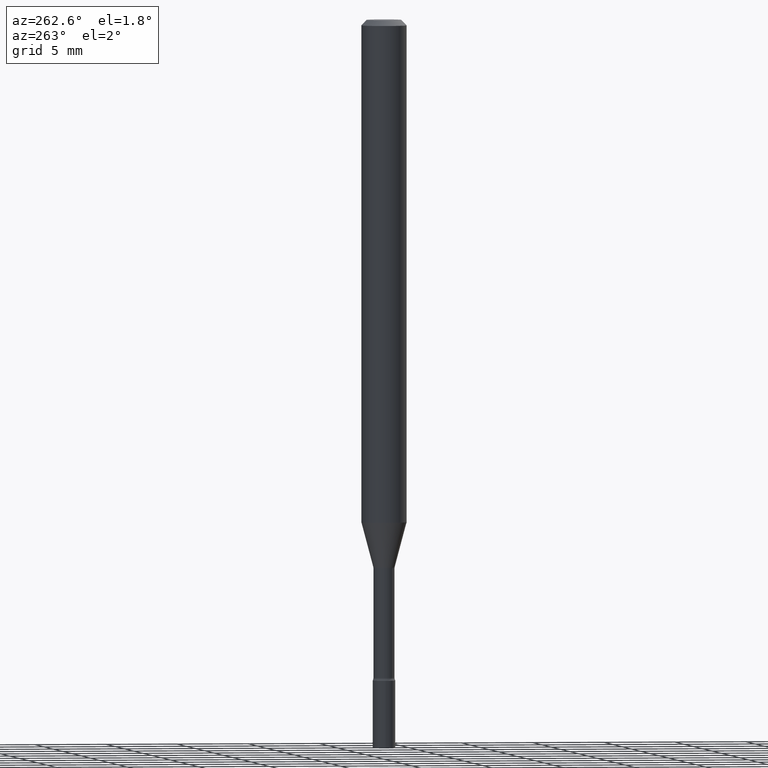
[diagram: clean part render]
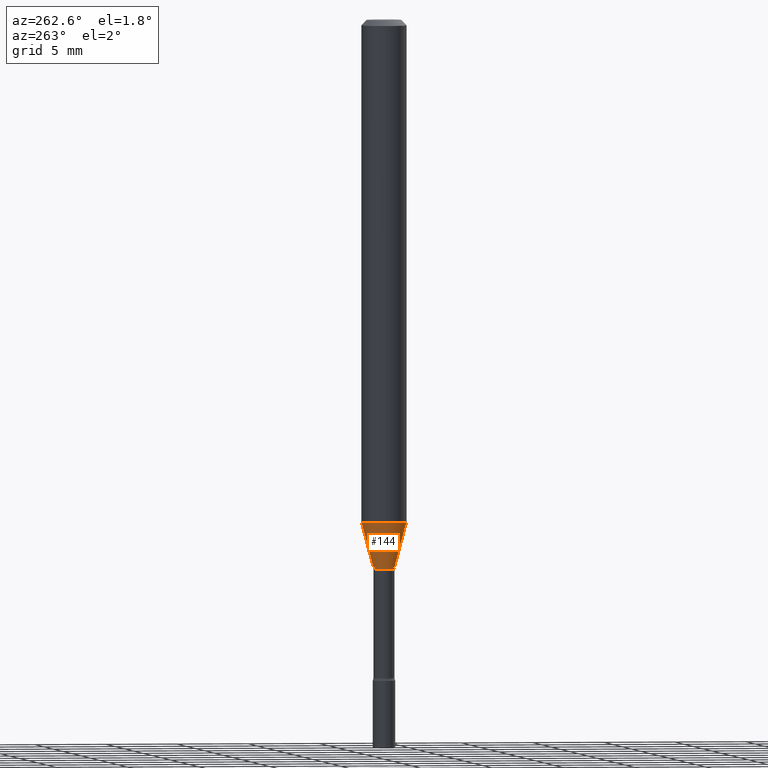
[diagram: same view with one face highlighted and labeled with its STEP entity id]
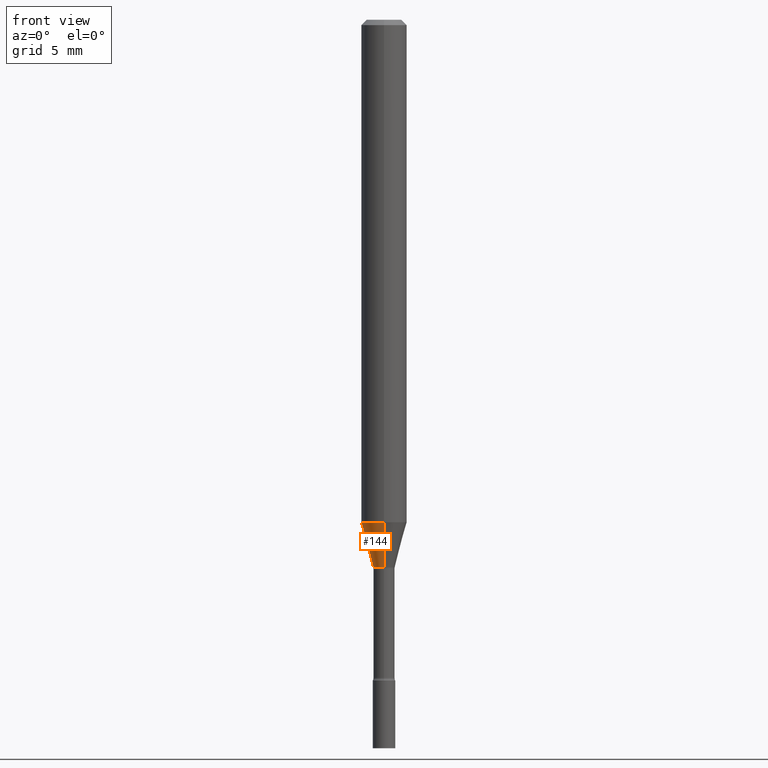
[diagram: same view with one face highlighted and labeled with its STEP entity id]
A machine part, auxiliary view. The second image highlights one B-rep face of the part: STEP entity #144.
A second angle (front view) of the same face is appended — the face is thin or edge-on in the first view.
In plain terms, the highlighted conical surface has half-angle 15 deg.
Its self-contained STEP definition (entity closure, byte-faithful):
#14 = DIRECTION ( 'NONE',  ( -6.982962677686265922E-15, -1.000000000000000000, 4.370956789862821150E-15 ) ) ;
#18 = EDGE_CURVE ( 'NONE', #307, #257, #353, .T. ) ;
#20 = VERTEX_POINT ( 'NONE', #185 ) ;
#33 = ORIENTED_EDGE ( 'NONE', *, *, #401, .T. ) ;
#40 = DIRECTION ( 'NONE',  ( -6.982962677686265922E-15, -1.000000000000000000, 0.000000000000000000 ) ) ;
#48 = CARTESIAN_POINT ( 'NONE',  ( 3.274220454076509529E-16, 0.02966111260565873833, -1.502092501787273271 ) ) ;
#70 = EDGE_LOOP ( 'NONE', ( #398, #33, #236, #349 ) ) ;
#73 = FACE_OUTER_BOUND ( 'NONE', #70, .T. ) ;
#77 = CIRCLE ( 'NONE', #312, 0.06250000000000000000 ) ;
#121 = CARTESIAN_POINT ( 'NONE',  ( 3.673350361826927807E-29, -5.244484970766083599E-15, -1.502092501787273271 ) ) ;
#144 = ADVANCED_FACE ( 'NONE', ( #73 ), #355, .T. ) ;
#162 = VECTOR ( 'NONE', #428, 39.37007874015748854 ) ;
#185 = CARTESIAN_POINT ( 'NONE',  ( -4.364351673553580935E-16, -0.06250000000000484335, -1.379536105567578108 ) ) ;
#188 = DIRECTION ( 'NONE',  ( 1.839019923739598738E-15, 0.2588190451025247363, 0.9659258262890673130 ) ) ;
#205 = DIRECTION ( 'NONE',  ( -2.445488781453985936E-29, 3.491452733121231775E-15, 1.000000000000000000 ) ) ;
#217 = VERTEX_POINT ( 'NONE', #243 ) ;
#235 = CARTESIAN_POINT ( 'NONE',  ( 4.440892098500961428E-16, 0.06249999999999514971, -1.379536105567578552 ) ) ;
#236 = ORIENTED_EDGE ( 'NONE', *, *, #371, .T. ) ;
#243 = CARTESIAN_POINT ( 'NONE',  ( -2.071224423039644956E-16, -0.02966111260566922994, -1.502092501787273271 ) ) ;
#246 = CARTESIAN_POINT ( 'NONE',  ( 3.373640069776234368E-29, -4.816585106223341561E-15, -1.379536105567578330 ) ) ;
#257 = VERTEX_POINT ( 'NONE', #235 ) ;
#288 = VECTOR ( 'NONE', #188, 39.37007874015748854 ) ;
#307 = VERTEX_POINT ( 'NONE', #48 ) ;
#312 = AXIS2_PLACEMENT_3D ( 'NONE', #246, #205, #14 ) ;
#330 = DIRECTION ( 'NONE',  ( -2.445488781453985936E-29, 3.491452733121231775E-15, 1.000000000000000000 ) ) ;
#333 = EDGE_CURVE ( 'NONE', #257, #20, #77, .T. ) ;
#335 = CARTESIAN_POINT ( 'NONE',  ( 3.673350361826927807E-29, -5.244484970766083599E-15, -1.502092501787273271 ) ) ;
#349 = ORIENTED_EDGE ( 'NONE', *, *, #333, .F. ) ;
#353 = LINE ( 'NONE', #476, #288 ) ;
#355 = CONICAL_SURFACE ( 'NONE', #485, 0.02966111260566398414, 0.2617993877991500740 ) ;
#356 = CIRCLE ( 'NONE', #414, 0.02966111260566398414 ) ;
#364 = DIRECTION ( 'NONE',  ( -6.982962677686265922E-15, -1.000000000000000000, 0.000000000000000000 ) ) ;
#371 = EDGE_CURVE ( 'NONE', #217, #20, #417, .T. ) ;
#372 = DIRECTION ( 'NONE',  ( -2.445488781453985936E-29, 3.491452733121231775E-15, 1.000000000000000000 ) ) ;
#386 = CARTESIAN_POINT ( 'NONE',  ( -2.071224423039644956E-16, -0.02966111260566922994, -1.502092501787273271 ) ) ;
#398 = ORIENTED_EDGE ( 'NONE', *, *, #18, .F. ) ;
#401 = EDGE_CURVE ( 'NONE', #307, #217, #356, .T. ) ;
#414 = AXIS2_PLACEMENT_3D ( 'NONE', #335, #372, #364 ) ;
#417 = LINE ( 'NONE', #386, #162 ) ;
#428 = DIRECTION ( 'NONE',  ( -1.807323732225328562E-15, -0.2588190451025179639, 0.9659258262890690894 ) ) ;
#476 = CARTESIAN_POINT ( 'NONE',  ( 2.107548809652055165E-16, 0.02966111260565873833, -1.502092501787273271 ) ) ;
#485 = AXIS2_PLACEMENT_3D ( 'NONE', #121, #330, #40 ) ;